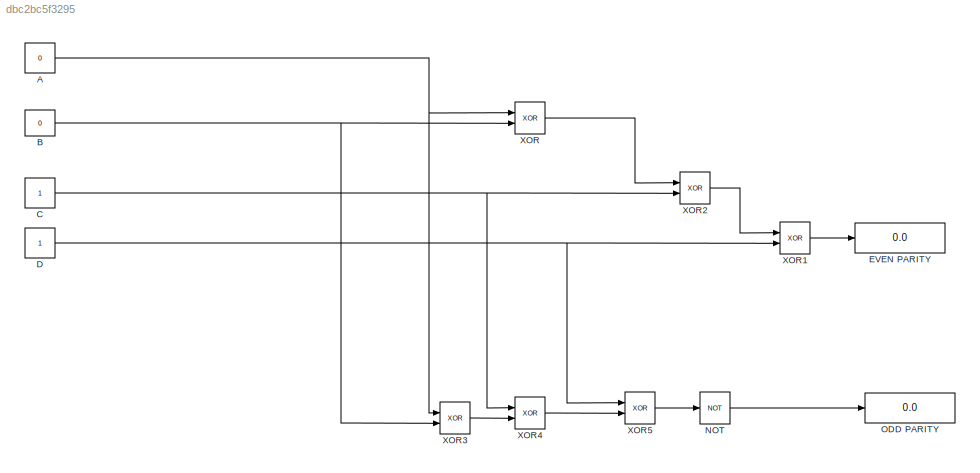
MODEL slx_dbc2bc5f3295
KIND model
CONFIG AbsTol = auto
CONFIG EnableMultiTasking = off
CONFIG FixedStep = auto
CONFIG MaxStep = auto
CONFIG MinStep = auto
CONFIG RelTol = 1e-3
CONFIG SampleTimeConstraint = Unconstrained
CONFIG SolverName = VariableStepAuto
CONFIG StartTime = 0.0
CONFIG StopTime = 1
BLOCK [Constant] A
  Value = 0
BLOCK [Constant] B
  Value = 0
BLOCK [Constant] C
BLOCK [Constant] D
BLOCK [Display] EVEN PARITY
  Decimation = 1
  Ports = [1]
BLOCK [Logic] NOT
  AllPortsSameDT = off
  IconShape = distinctive
  Operator = NOT
  OutDataTypeStr = boolean
  Ports = [1, 1]
BLOCK [Display] ODD PARITY
  Decimation = 1
  Ports = [1]
BLOCK [Logic] XOR
  AllPortsSameDT = off
  IconShape = distinctive
  Operator = XOR
  OutDataTypeStr = boolean
  Ports = [2, 1]
BLOCK [Logic] XOR1
  AllPortsSameDT = off
  IconShape = distinctive
  Operator = XOR
  OutDataTypeStr = boolean
  Ports = [2, 1]
BLOCK [Logic] XOR2
  AllPortsSameDT = off
  IconShape = distinctive
  Operator = XOR
  OutDataTypeStr = boolean
  Ports = [2, 1]
BLOCK [Logic] XOR3
  AllPortsSameDT = off
  IconShape = distinctive
  Operator = XOR
  OutDataTypeStr = boolean
  Ports = [2, 1]
BLOCK [Logic] XOR4
  AllPortsSameDT = off
  IconShape = distinctive
  Operator = XOR
  OutDataTypeStr = boolean
  Ports = [2, 1]
BLOCK [Logic] XOR5
  AllPortsSameDT = off
  IconShape = distinctive
  Operator = XOR
  OutDataTypeStr = boolean
  Ports = [2, 1]
NET A:1 -> XOR3:1, XOR:1
NET B:1 -> XOR3:2, XOR:2
NET C:1 -> XOR2:2, XOR4:1
NET D:1 -> XOR1:2, XOR5:1
LINE NOT:1 -> ODD PARITY:1
LINE XOR1:1 -> EVEN PARITY:1
LINE XOR2:1 -> XOR1:1
LINE XOR3:1 -> XOR4:2
LINE XOR4:1 -> XOR5:2
LINE XOR5:1 -> NOT:1
LINE XOR:1 -> XOR2:1
note: NET lines group one-source signal fan-out (src -> all destinations, sorted); 1:1 wires keep LINE
